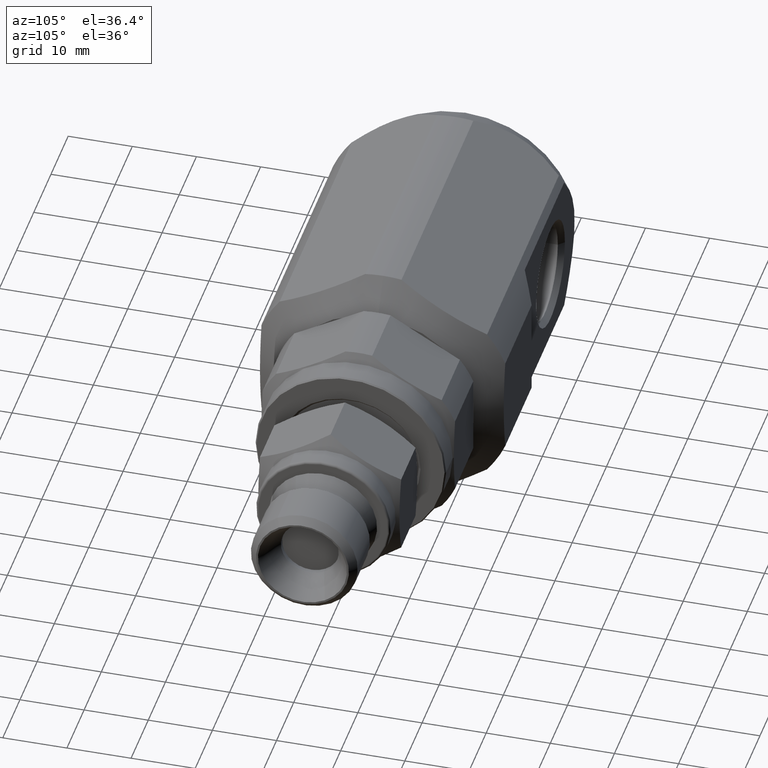
[diagram: clean part render]
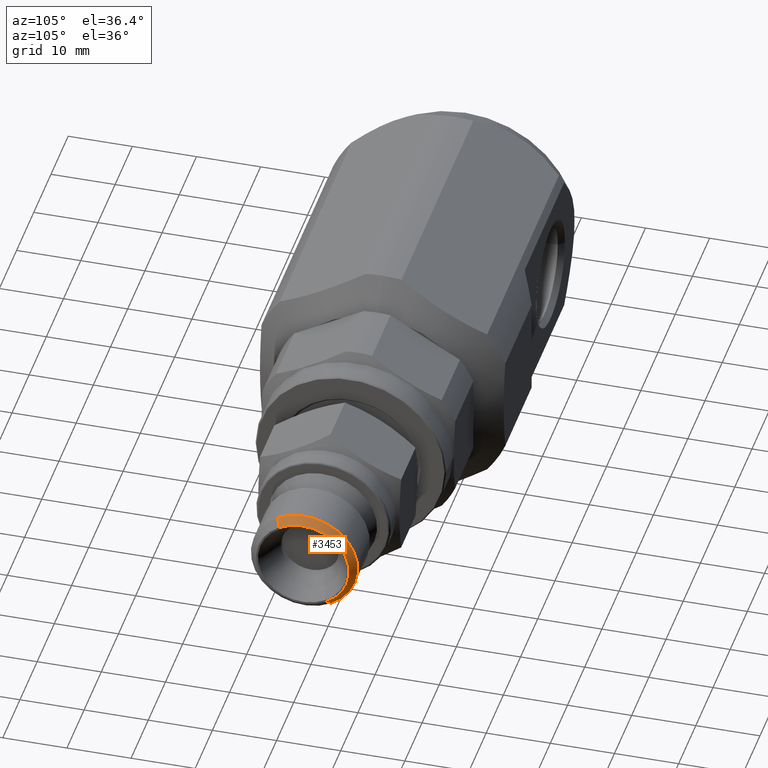
[diagram: same view with one face highlighted and labeled with its STEP entity id]
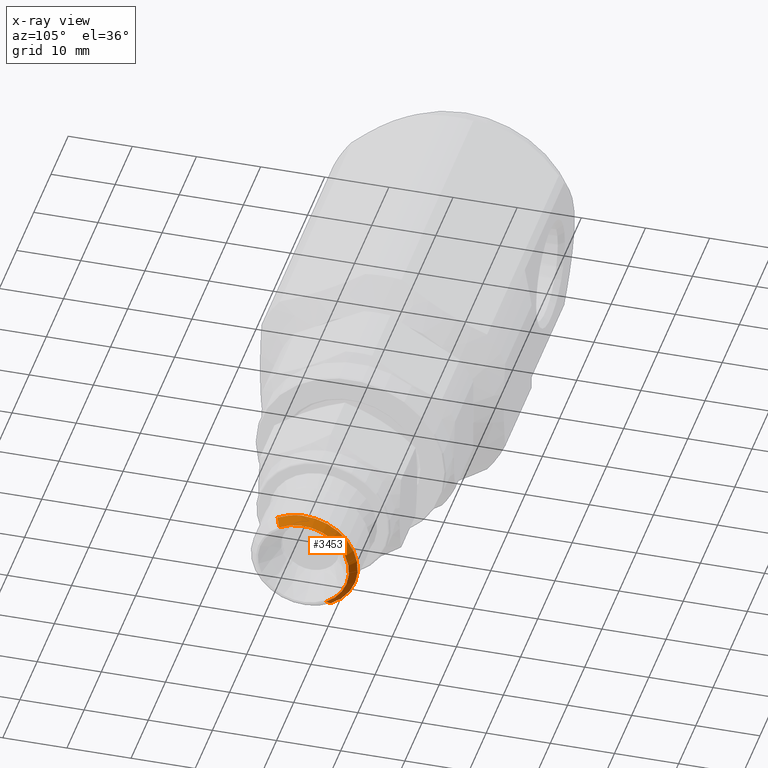
[diagram: x-ray of the same camera — body ghosted, the highlighted face saturated]
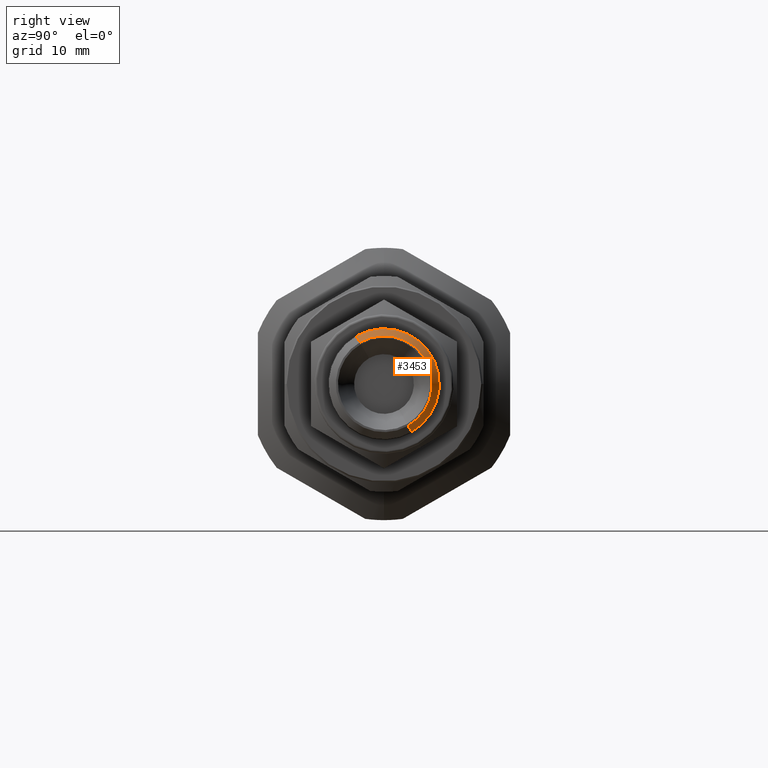
[diagram: same view with one face highlighted and labeled with its STEP entity id]
A machine part, auxiliary view. The second image highlights one B-rep face of the part: STEP entity #3453.
The next image is the same camera in x-ray: the body ghosted, the highlighted face saturated — about 0% of this face is hidden behind the body in this view.
A second angle (right view) of the same face is appended — the face is thin or edge-on in the first view.
In plain terms, the highlighted conical surface has half-angle 45 deg.
Its self-contained STEP definition (entity closure, byte-faithful):
#22 = EDGE_CURVE ( 'NONE', #40, #60, #2945, .T. ) ;
#26 = EDGE_CURVE ( 'NONE', #68, #67, #2953, .T. ) ;
#27 = EDGE_CURVE ( 'NONE', #60, #67, #2955, .T. ) ;
#40 = VERTEX_POINT ( 'NONE', #434 ) ;
#60 = VERTEX_POINT ( 'NONE', #455 ) ;
#67 = VERTEX_POINT ( 'NONE', #462 ) ;
#68 = VERTEX_POINT ( 'NONE', #463 ) ;
#129 = EDGE_LOOP ( 'NONE', ( #2671, #2673, #2681, #2682 ) ) ;
#406 = CARTESIAN_POINT ( 'NONE',  ( 94.90000000000003400, 3.624999999999999600, -6.278684177437179800 ) ) ;
#407 = DIRECTION ( 'NONE',  ( -0.7071067811865466800, 0.3535533905932741200, -0.6123724356957952500 ) ) ;
#414 = CARTESIAN_POINT ( 'NONE',  ( 94.90000000000003400, -3.624999999999998700, 6.278684177437180700 ) ) ;
#415 = DIRECTION ( 'NONE',  ( -0.7071067811865466800, -0.3535533905932741200, 0.6123724356957953600 ) ) ;
#416 = CARTESIAN_POINT ( 'NONE',  ( 93.81900000000004500, 0.0000000000000000000, 0.0000000000000000000 ) ) ;
#417 = DIRECTION ( 'NONE',  ( 1.000000000000000000, 0.0000000000000000000, 0.0000000000000000000 ) ) ;
#418 = DIRECTION ( 'NONE',  ( 0.0000000000000000000, 0.4999999999999997800, -0.8660254037844388200 ) ) ;
#434 = CARTESIAN_POINT ( 'NONE',  ( 94.90000000000003400, 3.624999999999999600, -6.278684177437179800 ) ) ;
#455 = CARTESIAN_POINT ( 'NONE',  ( 93.81900000000004500, 4.165499999999997100, -7.214857638928157800 ) ) ;
#462 = CARTESIAN_POINT ( 'NONE',  ( 93.81900000000004500, -4.165499999999996200, 7.214857638928158700 ) ) ;
#463 = CARTESIAN_POINT ( 'NONE',  ( 94.90000000000003400, -3.624999999999998700, 6.278684177437180700 ) ) ;
#847 = CARTESIAN_POINT ( 'NONE',  ( 94.90000000000003400, 0.0000000000000000000, 0.0000000000000000000 ) ) ;
#848 = DIRECTION ( 'NONE',  ( 1.000000000000000000, 0.0000000000000000000, 0.0000000000000000000 ) ) ;
#849 = DIRECTION ( 'NONE',  ( 0.0000000000000000000, 0.4999999999999998300, -0.8660254037844387100 ) ) ;
#1761 = EDGE_CURVE ( 'NONE', #40, #68, #3015, .T. ) ;
#1985 = CARTESIAN_POINT ( 'NONE',  ( 94.90000000000003400, 0.0000000000000000000, 0.0000000000000000000 ) ) ;
#1986 = DIRECTION ( 'NONE',  ( -1.000000000000000000, 0.0000000000000000000, 0.0000000000000000000 ) ) ;
#1987 = DIRECTION ( 'NONE',  ( 0.0000000000000000000, -0.4999999999999998300, 0.8660254037844387100 ) ) ;
#2415 = AXIS2_PLACEMENT_3D ( 'NONE', #416, #417, #418 ) ;
#2443 = AXIS2_PLACEMENT_3D ( 'NONE', #847, #848, #849 ) ;
#2552 = AXIS2_PLACEMENT_3D ( 'NONE', #1985, #1986, #1987 ) ;
#2671 = ORIENTED_EDGE ( 'NONE', *, *, #1761, .F. ) ;
#2673 = ORIENTED_EDGE ( 'NONE', *, *, #22, .T. ) ;
#2681 = ORIENTED_EDGE ( 'NONE', *, *, #27, .T. ) ;
#2682 = ORIENTED_EDGE ( 'NONE', *, *, #26, .F. ) ;
#2945 = LINE ( 'NONE', #406, #2946 ) ;
#2946 = VECTOR ( 'NONE', #407, 1000.000000000000000 ) ;
#2953 = LINE ( 'NONE', #414, #2954 ) ;
#2954 = VECTOR ( 'NONE', #415, 999.9999999999998900 ) ;
#2955 = CIRCLE ( 'NONE', #2415, 8.330999999999997700 ) ;
#3015 = CIRCLE ( 'NONE', #2443, 7.250000000000000000 ) ;
#3294 = FACE_OUTER_BOUND ( 'NONE', #129, .T. ) ;
#3295 = CONICAL_SURFACE ( 'NONE', #2552, 7.250000000000000000, 0.7853981633974495000 ) ;
#3453 = ADVANCED_FACE ( 'NONE', ( #3294 ), #3295, .T. ) ;